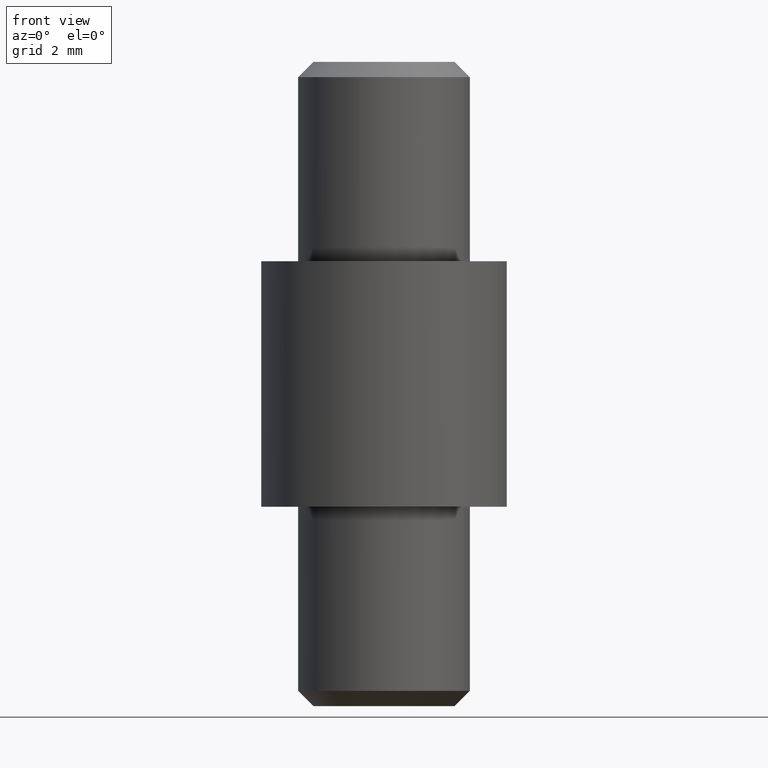
[diagram: clean part render]
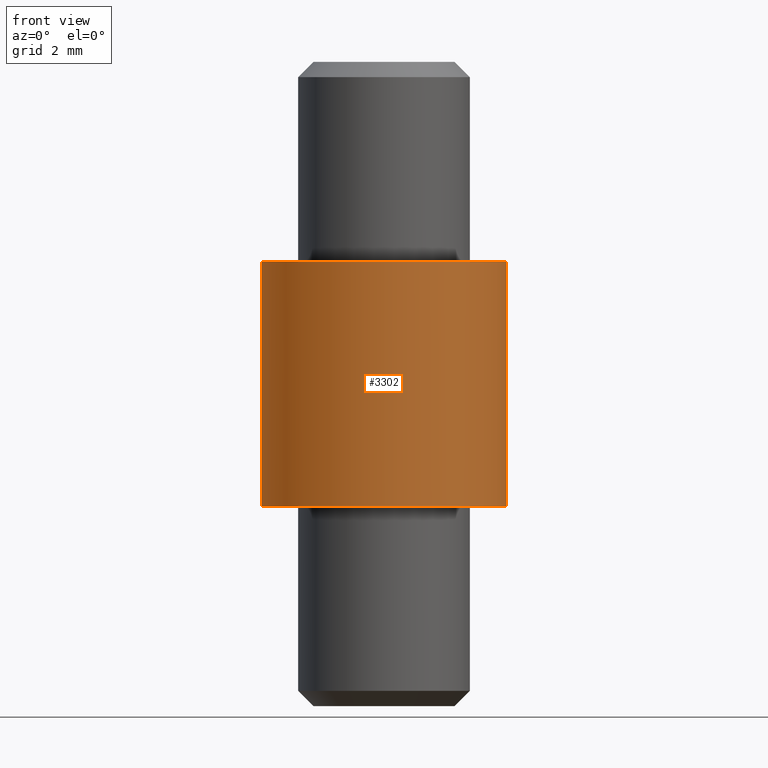
[diagram: same view with one face highlighted and labeled with its STEP entity id]
A machine part, front view. The second image highlights one B-rep face of the part: STEP entity #3302.
In plain terms, the highlighted cylindrical surface (partial cylindrical patch) has radius 4 mm, axis along (-0, -0, -1).
Its self-contained STEP definition (entity closure, byte-faithful):
#146 = DIRECTION ( 'NONE',  ( 0.0000000000000000000, 0.0000000000000000000, 1.000000000000000000 ) ) ;
#1675 = DIRECTION ( 'NONE',  ( 1.000000000000000000, 0.0000000000000000000, 0.0000000000000000000 ) ) ;
#2709 = VERTEX_POINT ( 'NONE', #7559 ) ;
#2995 = DIRECTION ( 'NONE',  ( -0.0000000000000000000, -0.0000000000000000000, -1.000000000000000000 ) ) ;
#3165 = CIRCLE ( 'NONE', #4362, 4.000000000000000000 ) ;
#3302 = ADVANCED_FACE ( 'NONE', ( #6780 ), #11654, .T. ) ;
#3790 = EDGE_LOOP ( 'NONE', ( #6044, #8105, #9152, #10630 ) ) ;
#3838 = AXIS2_PLACEMENT_3D ( 'NONE', #6923, #9748, #1675 ) ;
#4032 = CARTESIAN_POINT ( 'NONE',  ( 0.0000000000000000000, 0.0000000000000000000, 8.000000000000000000 ) ) ;
#4362 = AXIS2_PLACEMENT_3D ( 'NONE', #9082, #146, #4611 ) ;
#4574 = VECTOR ( 'NONE', #10016, 1000.000000000000000 ) ;
#4611 = DIRECTION ( 'NONE',  ( 1.000000000000000000, 0.0000000000000000000, 0.0000000000000000000 ) ) ;
#4849 = EDGE_CURVE ( 'NONE', #9153, #5178, #3165, .T. ) ;
#5178 = VERTEX_POINT ( 'NONE', #6617 ) ;
#5422 = CARTESIAN_POINT ( 'NONE',  ( -4.000000000000000000, 0.0000000000000000000, 8.000000000000000000 ) ) ;
#5697 = DIRECTION ( 'NONE',  ( -1.000000000000000000, 0.0000000000000000000, 0.0000000000000000000 ) ) ;
#5977 = CARTESIAN_POINT ( 'NONE',  ( -4.000000000000000000, 0.0000000000000000000, 8.000000000000000000 ) ) ;
#6044 = ORIENTED_EDGE ( 'NONE', *, *, #9311, .F. ) ;
#6240 = CARTESIAN_POINT ( 'NONE',  ( 4.000000000000000000, 4.898587196589412800E-016, 0.0000000000000000000 ) ) ;
#6447 = EDGE_CURVE ( 'NONE', #2709, #10491, #8100, .T. ) ;
#6617 = CARTESIAN_POINT ( 'NONE',  ( 4.000000000000000000, 4.898587196589412800E-016, 8.000000000000000000 ) ) ;
#6689 = VECTOR ( 'NONE', #2995, 1000.000000000000000 ) ;
#6780 = FACE_OUTER_BOUND ( 'NONE', #3790, .T. ) ;
#6923 = CARTESIAN_POINT ( 'NONE',  ( 0.0000000000000000000, 0.0000000000000000000, 0.0000000000000000000 ) ) ;
#7061 = AXIS2_PLACEMENT_3D ( 'NONE', #4032, #11188, #5697 ) ;
#7257 = LINE ( 'NONE', #5422, #4574 ) ;
#7559 = CARTESIAN_POINT ( 'NONE',  ( -4.000000000000000000, 0.0000000000000000000, 0.0000000000000000000 ) ) ;
#8100 = CIRCLE ( 'NONE', #3838, 4.000000000000000000 ) ;
#8105 = ORIENTED_EDGE ( 'NONE', *, *, #4849, .F. ) ;
#8334 = EDGE_CURVE ( 'NONE', #9153, #2709, #7257, .T. ) ;
#9082 = CARTESIAN_POINT ( 'NONE',  ( 0.0000000000000000000, 0.0000000000000000000, 8.000000000000000000 ) ) ;
#9152 = ORIENTED_EDGE ( 'NONE', *, *, #8334, .T. ) ;
#9153 = VERTEX_POINT ( 'NONE', #5977 ) ;
#9292 = CARTESIAN_POINT ( 'NONE',  ( 4.000000000000000000, 4.898587196589412800E-016, 8.000000000000000000 ) ) ;
#9311 = EDGE_CURVE ( 'NONE', #5178, #10491, #11129, .T. ) ;
#9748 = DIRECTION ( 'NONE',  ( 0.0000000000000000000, 0.0000000000000000000, 1.000000000000000000 ) ) ;
#10016 = DIRECTION ( 'NONE',  ( -0.0000000000000000000, -0.0000000000000000000, -1.000000000000000000 ) ) ;
#10491 = VERTEX_POINT ( 'NONE', #6240 ) ;
#10630 = ORIENTED_EDGE ( 'NONE', *, *, #6447, .T. ) ;
#11129 = LINE ( 'NONE', #9292, #6689 ) ;
#11188 = DIRECTION ( 'NONE',  ( -0.0000000000000000000, -0.0000000000000000000, -1.000000000000000000 ) ) ;
#11654 = CYLINDRICAL_SURFACE ( 'NONE', #7061, 4.000000000000000000 ) ;